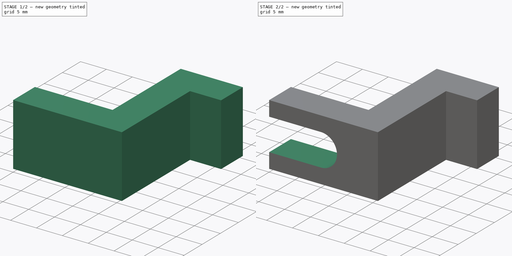
[diagram: build sequence overview — one tinted view per stage of 2, left to right]
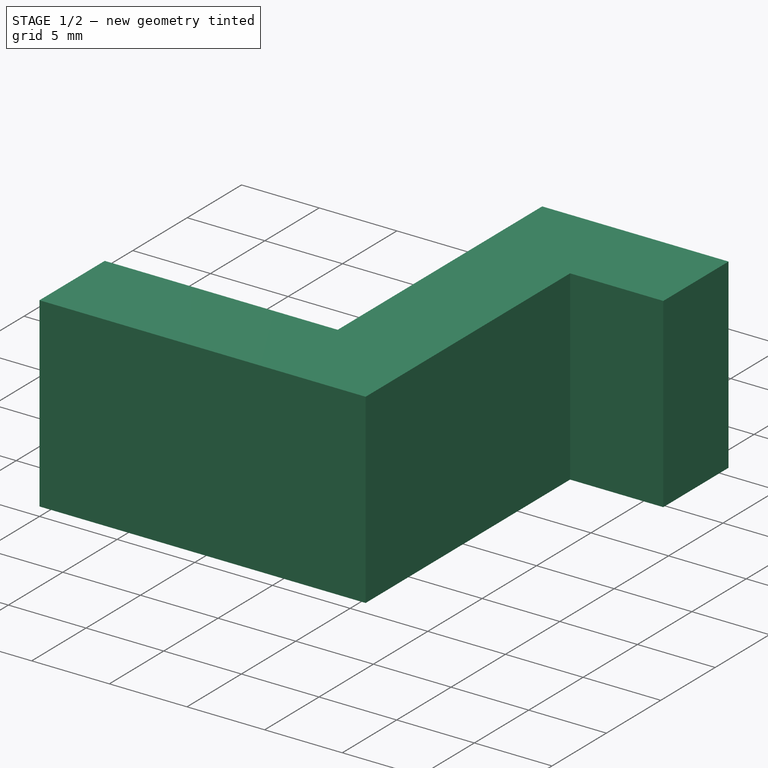
[diagram: stage 1 of 2 — iso view after this stage's code; geometry added in this stage tinted green]
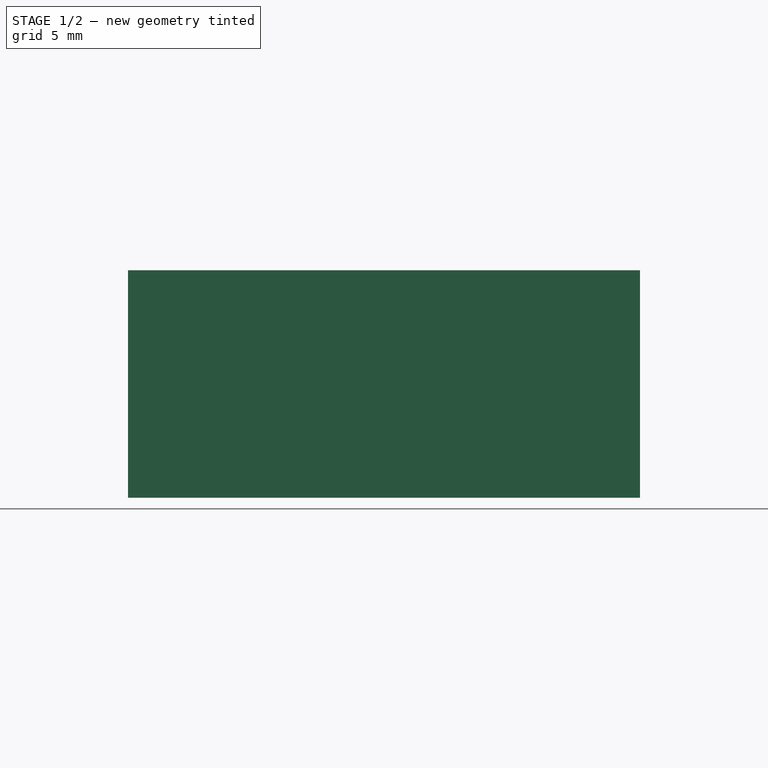
[diagram: stage 1 of 2 — front view after this stage's code; geometry added in this stage tinted green]
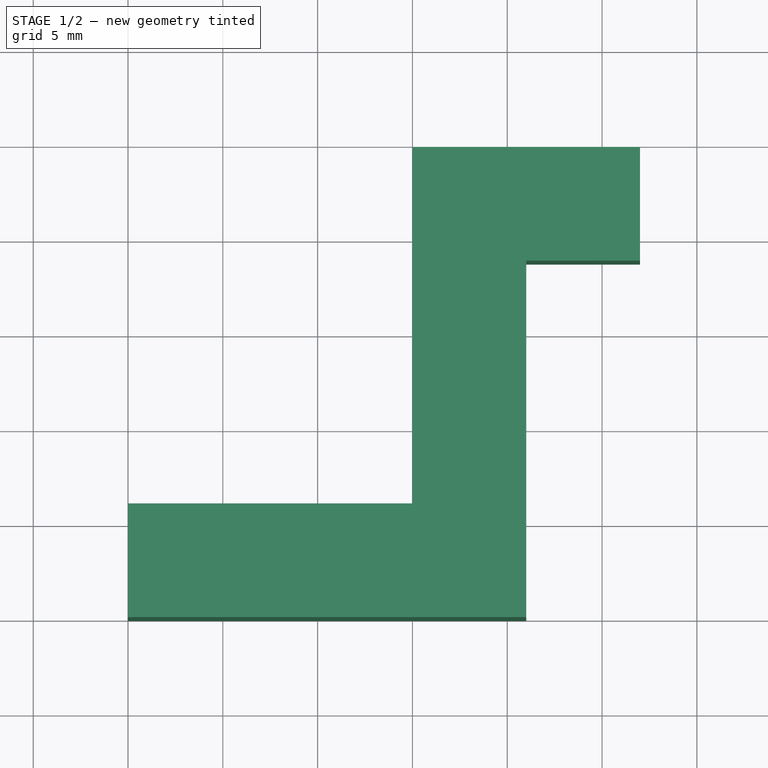
[diagram: stage 1 of 2 — top view after this stage's code; geometry added in this stage tinted green]
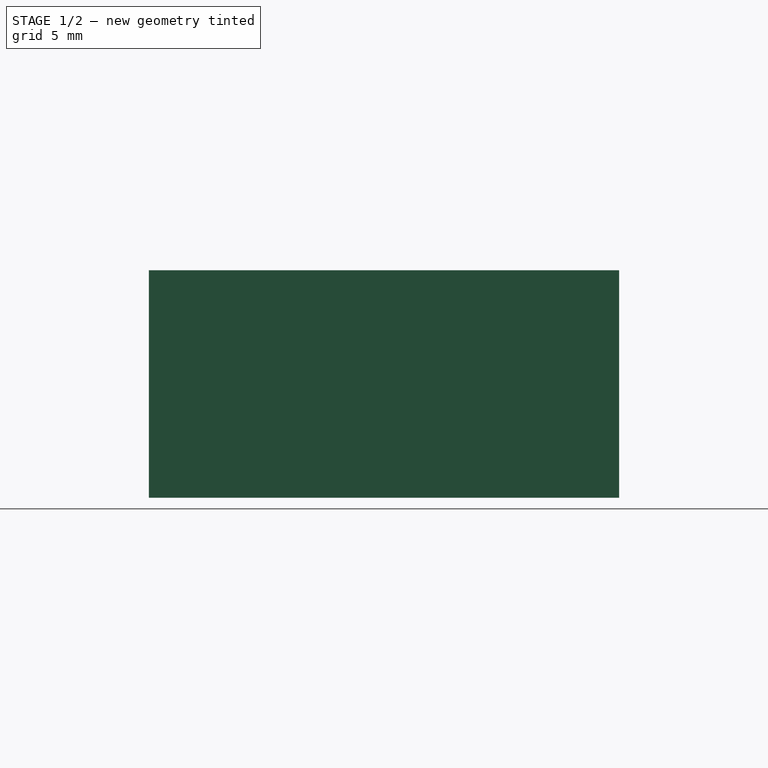
[diagram: stage 1 of 2 — right view after this stage's code; geometry added in this stage tinted green]
FCSTD DOCUMENT  (FreeCAD 0.22R37100 (Git))
Label: slide
License: All rights reserved
LicenseURL: http://en.wikipedia.org/wiki/All_rights_reserved
objects: Sketcher::SketchObject×2, Spreadsheet::Sheet×1, PartDesign::Pad×1, PartDesign::Pocket×1, PartDesign::Body×1
note: 7 computed .brp shape members not serialized (recipe doc carries the construction recipe); baked Part::Feature solids carry a one-line shape summary decoded from their .brp

FEATURE [Spreadsheet::Sheet] Spreadsheet  label="vars"
  cells = A1='length; B1(length)=15; C1=25; D1=17; A2='width; B2(width)=12; A3='height; B3(height)=6; A4='total height; B4(total_height)==clamp_height + 6; A5='guide edge; B5(guide_edge)=0; A6='guide length; B6(guide_length)==length - 5; A7='guide width; B7(guide_width)=6.2; A8='clamp height; B8(clamp_height)=18.8; A9='clamp depth; B9(clamp_depth)=6
FEATURE [Sketcher::SketchObject] Sketch
  AttachmentSupport = -> [XY_Plane]
  FullyConstrained = true
  MapMode = 5
  expr: Constraints[18] = <<vars>>.height
  expr: Constraints[19] = <<vars>>.total_height - <<vars>>.clamp_height
  expr: Constraints[20] = <<vars>>.clamp_height
  expr: Constraints[21] = <<vars>>.clamp_depth
  expr: Constraints[22] = <<vars>>.clamp_depth
  expr: Constraints[23] = <<vars>>.length
  sketch-geometry (8):
    g0: LineSegment StartX=0 StartY=0 StartZ=0 EndX=21 EndY=0 EndZ=0
    g1: LineSegment StartX=21 StartY=0 StartZ=0 EndX=21 EndY=18.8 EndZ=0
    g2: LineSegment StartX=21 StartY=18.8 StartZ=0 EndX=27 EndY=18.8 EndZ=0
    g3: LineSegment StartX=27 StartY=18.8 StartZ=0 EndX=27 EndY=24.8 EndZ=0
    g4: LineSegment StartX=27 StartY=24.8 StartZ=0 EndX=15 EndY=24.8 EndZ=0
    g5: LineSegment StartX=15 StartY=24.8 StartZ=0 EndX=15 EndY=6 EndZ=0
    g6: LineSegment StartX=15 StartY=6 StartZ=0 EndX=0 EndY=6 EndZ=0
    g7: LineSegment StartX=0 StartY=6 StartZ=0 EndX=0 EndY=0 EndZ=0
  constraints (24):
    c: PointOnObject(g0,g-1)
    c: PointOnObject(g0,g-1)
    c: Coincident(g0,g1)
    c: Coincident(g1,g2)
    c: Horizontal(g2)
    c: Coincident(g2,g3)
    c: Vertical(g3)
    c: Coincident(g3,g4)
    c: Horizontal(g4)
    c: Coincident(g4,g5)
    c: Coincident(g5,g6)
    c: PointOnObject(g6,g-2)
    c: Horizontal(g6)
    c: Coincident(g6,g7)
    c: Coincident(g7,g0)
    c: Vertical(g7)
    c: Vertical(g5)
    c: Vertical(g1)
    c: DistanceY(g7,g7) = 6
    c: DistanceY(g3,g3) = 6
    c: DistanceY(g1,g1) = 18.8
    c: Distance(g5,g1) = 6
    c: DistanceX(g2,g2) = 6
    c: DistanceX(g6,g6) = 15
FEATURE [PartDesign::Pad] Pad
  Direction = (0,0,1)
  Length = 12
  Length2 = 10
  Profile = -> Sketch
  ReferenceAxis = -> Sketch [N_Axis]
  Suppressed = false
  Type = 0
  expr: Length = <<vars>>.width
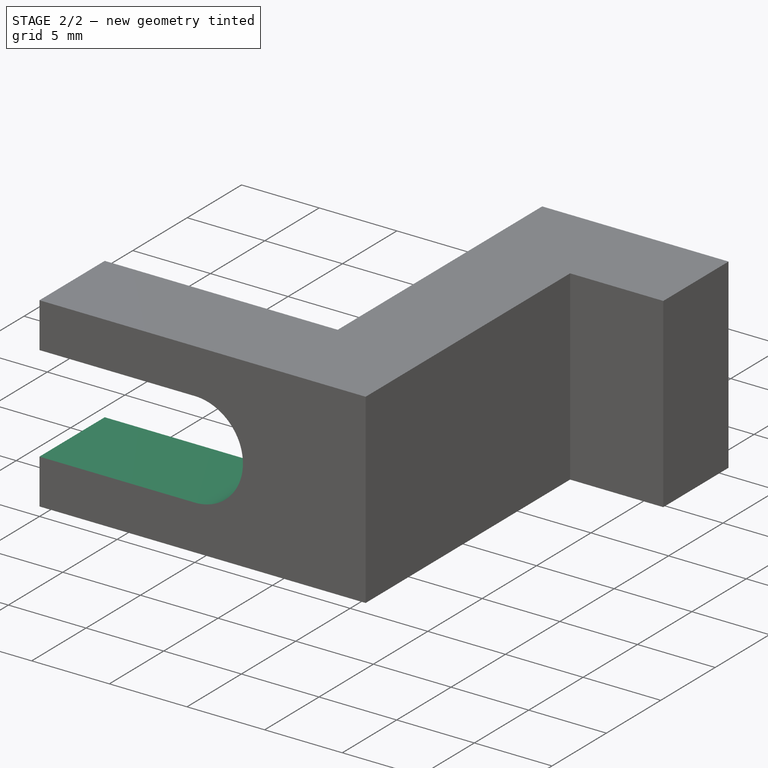
[diagram: stage 2 of 2 — iso view after this stage's code; geometry added in this stage tinted green]
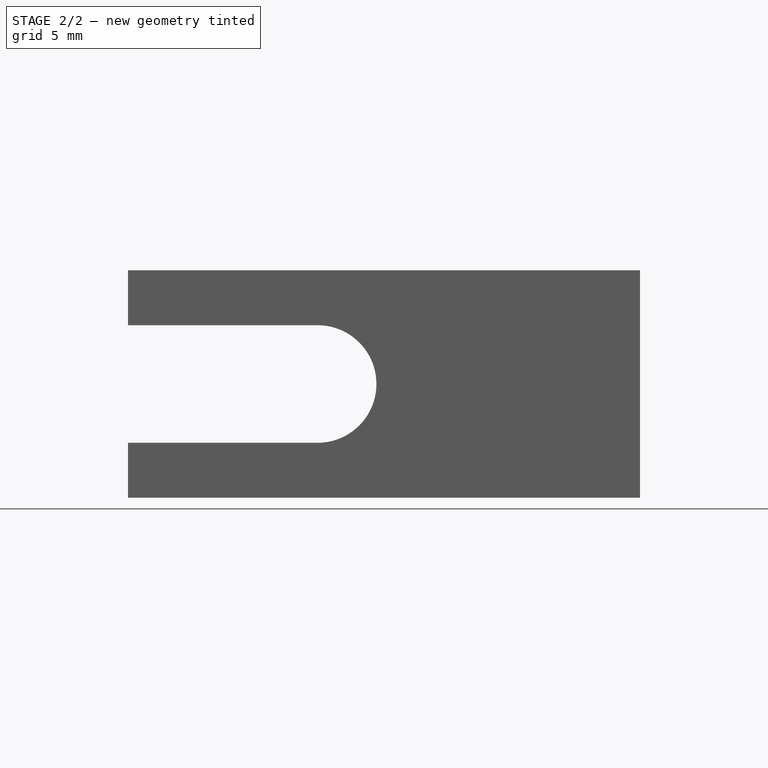
[diagram: stage 2 of 2 — front view after this stage's code; geometry added in this stage tinted green]
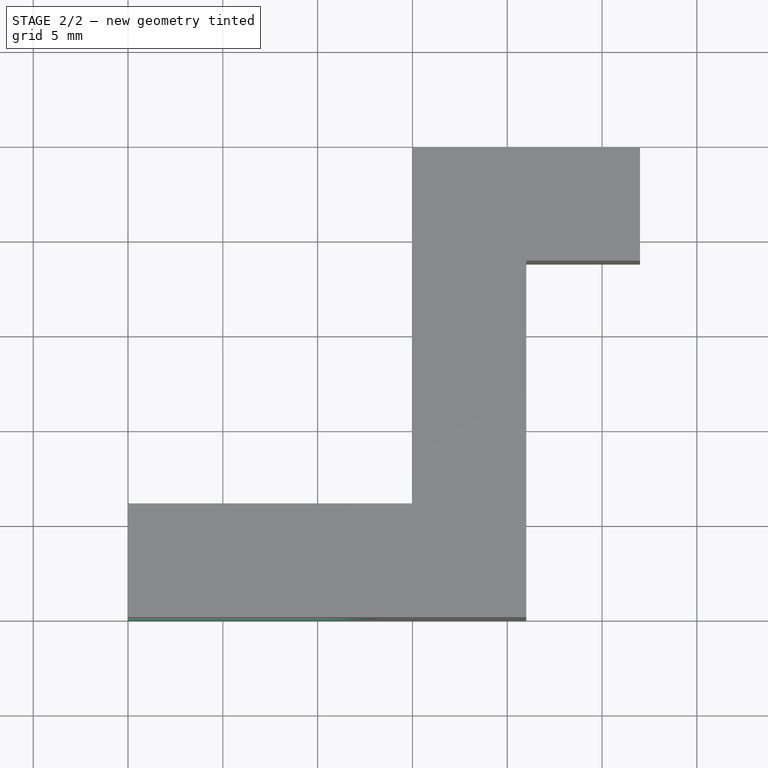
[diagram: stage 2 of 2 — top view after this stage's code; geometry added in this stage tinted green]
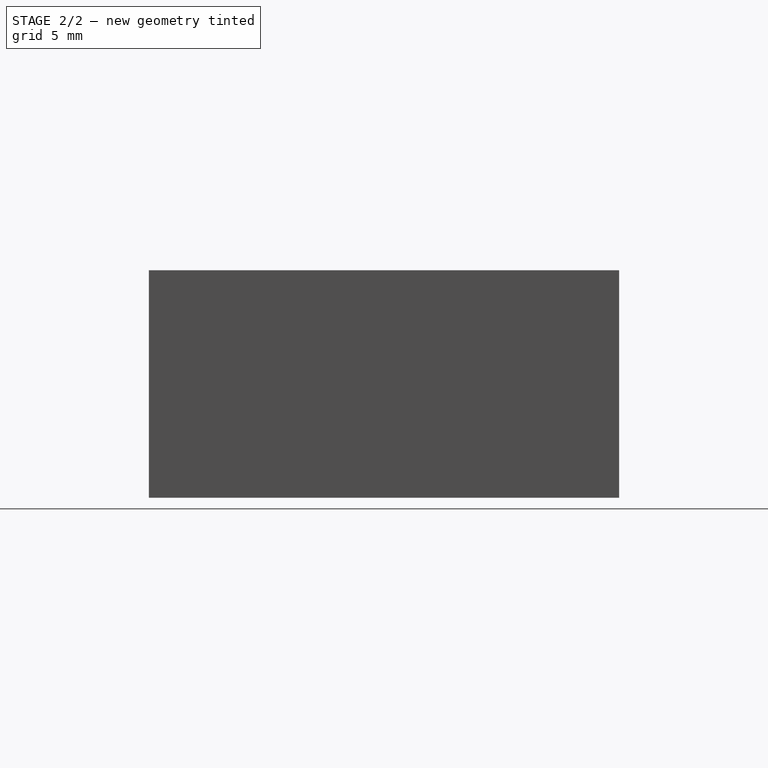
[diagram: stage 2 of 2 — right view after this stage's code; geometry added in this stage tinted green]
FEATURE [Sketcher::SketchObject] Sketch002
  AttachmentSupport = -> [Pad]
  FullyConstrained = true
  MapMode = 5
  Placement = pos=(0,0,0) rot=(1,0,0;1.5708rad)
  expr: Constraints[11] = <<vars>>.guide_length
  expr: Constraints[7] = <<vars>>.guide_width
  expr: Constraints[8] = <<vars>>.guide_edge
  expr: Constraints[9] = <<vars>>.width / 2
  sketch-geometry (4):
    g0: LineSegment StartX=-1e-16 StartY=9.1 StartZ=0 EndX=10 EndY=9.1 EndZ=0
    g1: ArcOfCircle CenterX=10 CenterY=6 CenterZ=0 NormalX=0 NormalY=0 NormalZ=1 AngleXU=0 Radius=3.1 StartAngle=4.71239 EndAngle=7.85398
    g2: LineSegment StartX=10 StartY=2.9 StartZ=0 EndX=0 EndY=2.9 EndZ=0
    g3: ArcOfCircle CenterX=1.1e-15 CenterY=6 CenterZ=0 NormalX=0 NormalY=0 NormalZ=1 AngleXU=0 Radius=3.1 StartAngle=1.5708 EndAngle=4.71239
  constraints (12):
    c: Horizontal(g0)
    c: Tangent(g0,g1) = 1.5708
    c: Coincident(g1,g2)
    c: Horizontal(g2)
    c: Tangent(g2,g3) = 1.5708
    c: Coincident(g3,g0)
    c: Equal(g0,g2)
    c: Distance(g0,g1) = 6.2
    c: DistanceX(g-2,g0) = 0
    c: DistanceY(g-1,g3) = 6
    c: Vertical(g0,g1)
    c: Distance(g3,g1) = 10
FEATURE [PartDesign::Pocket] Pocket
  BaseFeature = -> Pad
  Direction = (0,1,-2e-16)
  Length = 6
  Length2 = 5
  Profile = -> Sketch002
  ReferenceAxis = -> Sketch002 [N_Axis]
  Suppressed = false
  Type = 0
  expr: Length = <<vars>>.height
FEATURE [PartDesign::Body] Body
  Group = -> [Sketch,Pad,Sketch002,Pocket]
  Origin = -> Origin
  Tip = -> Pocket
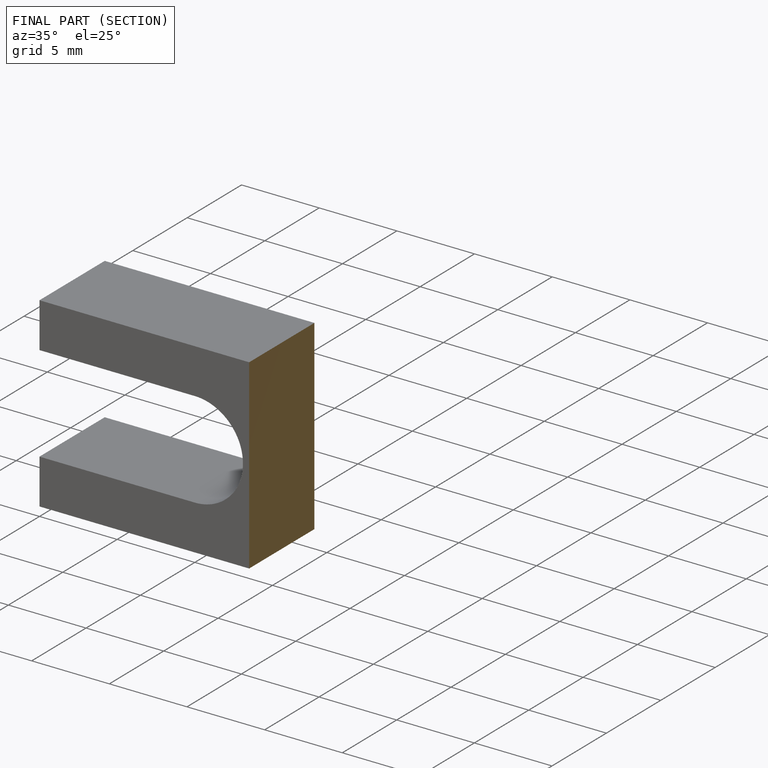
[diagram: finished part — half-section view (interior)]
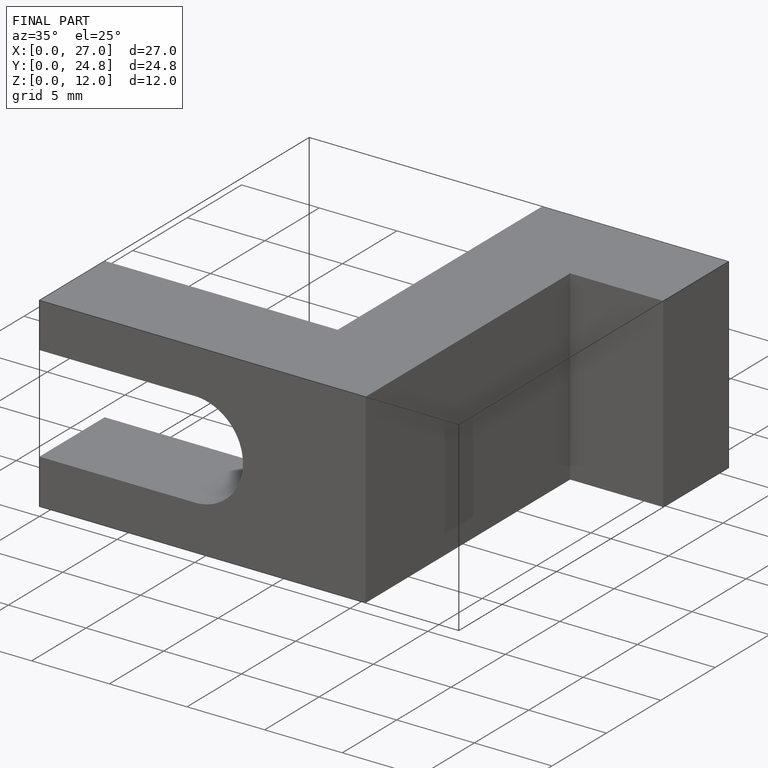
[diagram: finished part — iso view with bounding-box wireframe]
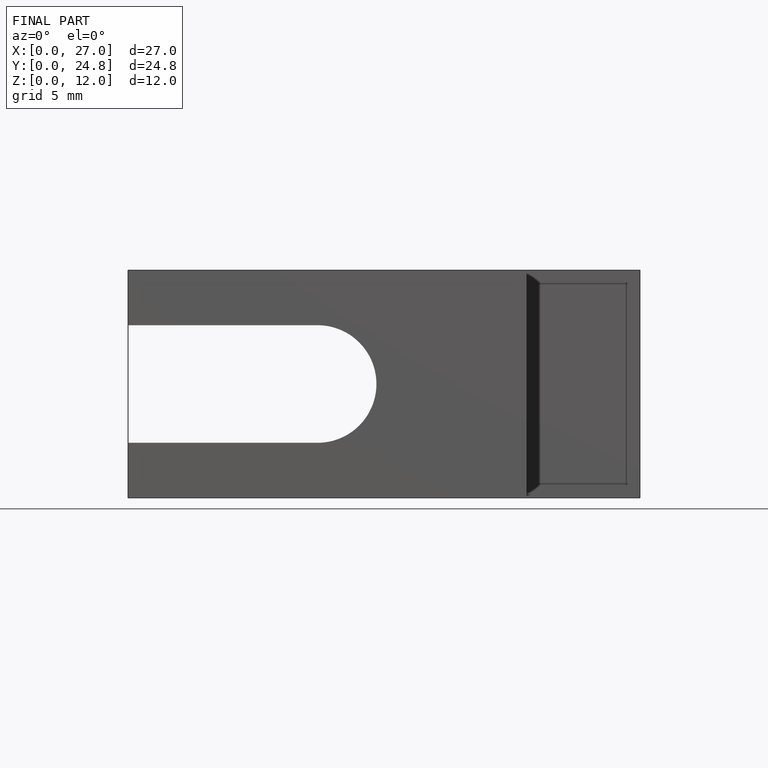
[diagram: finished part — front view with bounding-box wireframe]
